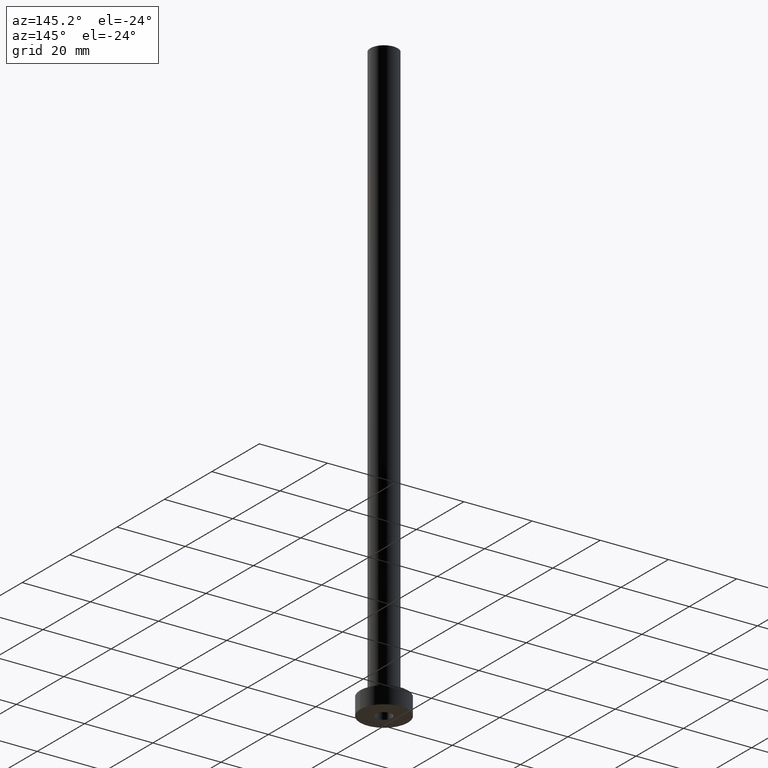
[diagram: clean part render]
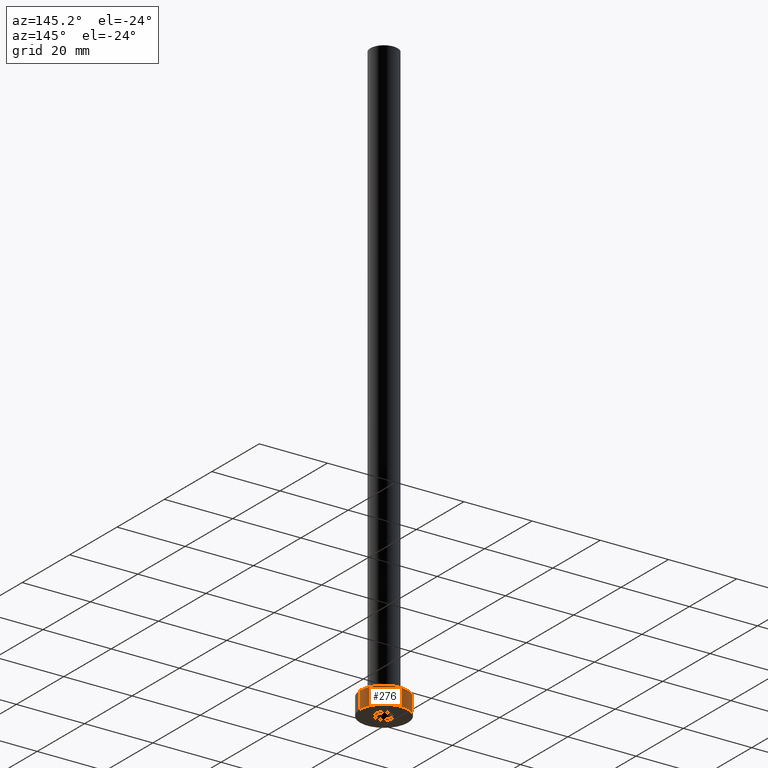
[diagram: same view with one face highlighted and labeled with its STEP entity id]
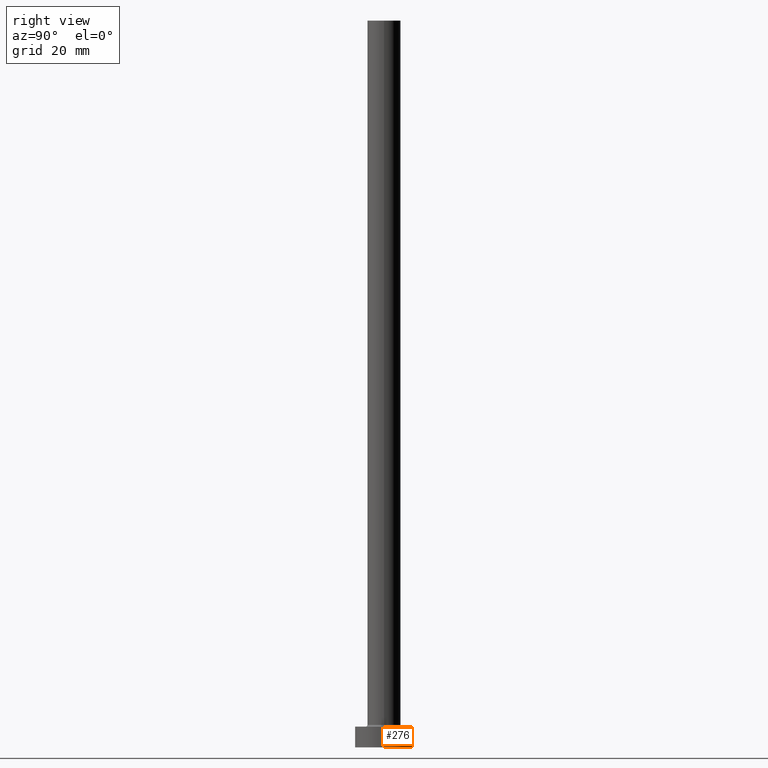
[diagram: same view with one face highlighted and labeled with its STEP entity id]
A machine part, auxiliary view. The second image highlights one B-rep face of the part: STEP entity #276.
A second angle (right view) of the same face is appended — the face is thin or edge-on in the first view.
In plain terms, the highlighted cylindrical surface (edge-blend (fillet) strip) has radius 7 mm, axis along (-0, -0, -1).
Its self-contained STEP definition (entity closure, byte-faithful):
#22 = VECTOR ( 'NONE', #432, 1000.000000000000000 ) ;
#25 = DIRECTION ( 'NONE',  ( 1.000000000000000000, 0.000000000000000000, 0.000000000000000000 ) ) ;
#44 = CARTESIAN_POINT ( 'NONE',  ( -7.000000000000000000, 0.000000000000000000, 5.000000000000000000 ) ) ;
#57 = ORIENTED_EDGE ( 'NONE', *, *, #141, .F. ) ;
#62 = CARTESIAN_POINT ( 'NONE',  ( 0.000000000000000000, 0.000000000000000000, 0.000000000000000000 ) ) ;
#70 = DIRECTION ( 'NONE',  ( -1.000000000000000000, 0.000000000000000000, 0.000000000000000000 ) ) ;
#98 = FACE_OUTER_BOUND ( 'NONE', #262, .T. ) ;
#107 = CARTESIAN_POINT ( 'NONE',  ( 7.000000000000000000, 8.572527594031473190E-16, 0.000000000000000000 ) ) ;
#119 = DIRECTION ( 'NONE',  ( 1.000000000000000000, 0.000000000000000000, 0.000000000000000000 ) ) ;
#125 = ORIENTED_EDGE ( 'NONE', *, *, #136, .T. ) ;
#135 = CARTESIAN_POINT ( 'NONE',  ( -7.000000000000000000, 0.000000000000000000, 0.000000000000000000 ) ) ;
#136 = EDGE_CURVE ( 'NONE', #213, #311, #384, .T. ) ;
#141 = EDGE_CURVE ( 'NONE', #213, #167, #317, .T. ) ;
#158 = DIRECTION ( 'NONE',  ( 0.000000000000000000, 0.000000000000000000, 1.000000000000000000 ) ) ;
#167 = VERTEX_POINT ( 'NONE', #200 ) ;
#176 = EDGE_CURVE ( 'NONE', #311, #418, #411, .T. ) ;
#200 = CARTESIAN_POINT ( 'NONE',  ( -7.000000000000000000, 0.000000000000000000, 5.000000000000000000 ) ) ;
#213 = VERTEX_POINT ( 'NONE', #379 ) ;
#218 = AXIS2_PLACEMENT_3D ( 'NONE', #365, #341, #70 ) ;
#250 = ORIENTED_EDGE ( 'NONE', *, *, #176, .T. ) ;
#253 = VECTOR ( 'NONE', #385, 1000.000000000000000 ) ;
#262 = EDGE_LOOP ( 'NONE', ( #57, #125, #250, #290 ) ) ;
#276 = ADVANCED_FACE ( 'NONE', ( #98 ), #367, .T. ) ;
#279 = EDGE_CURVE ( 'NONE', #167, #418, #363, .T. ) ;
#290 = ORIENTED_EDGE ( 'NONE', *, *, #279, .F. ) ;
#295 = AXIS2_PLACEMENT_3D ( 'NONE', #414, #158, #119 ) ;
#311 = VERTEX_POINT ( 'NONE', #107 ) ;
#317 = CIRCLE ( 'NONE', #295, 7.000000000000000000 ) ;
#321 = CARTESIAN_POINT ( 'NONE',  ( 7.000000000000000000, 8.572527594031473190E-16, 5.000000000000000000 ) ) ;
#341 = DIRECTION ( 'NONE',  ( -0.000000000000000000, -0.000000000000000000, -1.000000000000000000 ) ) ;
#342 = AXIS2_PLACEMENT_3D ( 'NONE', #62, #347, #25 ) ;
#347 = DIRECTION ( 'NONE',  ( 0.000000000000000000, 0.000000000000000000, 1.000000000000000000 ) ) ;
#363 = LINE ( 'NONE', #44, #22 ) ;
#365 = CARTESIAN_POINT ( 'NONE',  ( 0.000000000000000000, 0.000000000000000000, 5.000000000000000000 ) ) ;
#367 = CYLINDRICAL_SURFACE ( 'NONE', #218, 7.000000000000000000 ) ;
#379 = CARTESIAN_POINT ( 'NONE',  ( 7.000000000000000000, 8.572527594031473190E-16, 5.000000000000000000 ) ) ;
#384 = LINE ( 'NONE', #321, #253 ) ;
#385 = DIRECTION ( 'NONE',  ( -0.000000000000000000, -0.000000000000000000, -1.000000000000000000 ) ) ;
#411 = CIRCLE ( 'NONE', #342, 7.000000000000000000 ) ;
#414 = CARTESIAN_POINT ( 'NONE',  ( 0.000000000000000000, 0.000000000000000000, 5.000000000000000000 ) ) ;
#418 = VERTEX_POINT ( 'NONE', #135 ) ;
#432 = DIRECTION ( 'NONE',  ( -0.000000000000000000, -0.000000000000000000, -1.000000000000000000 ) ) ;